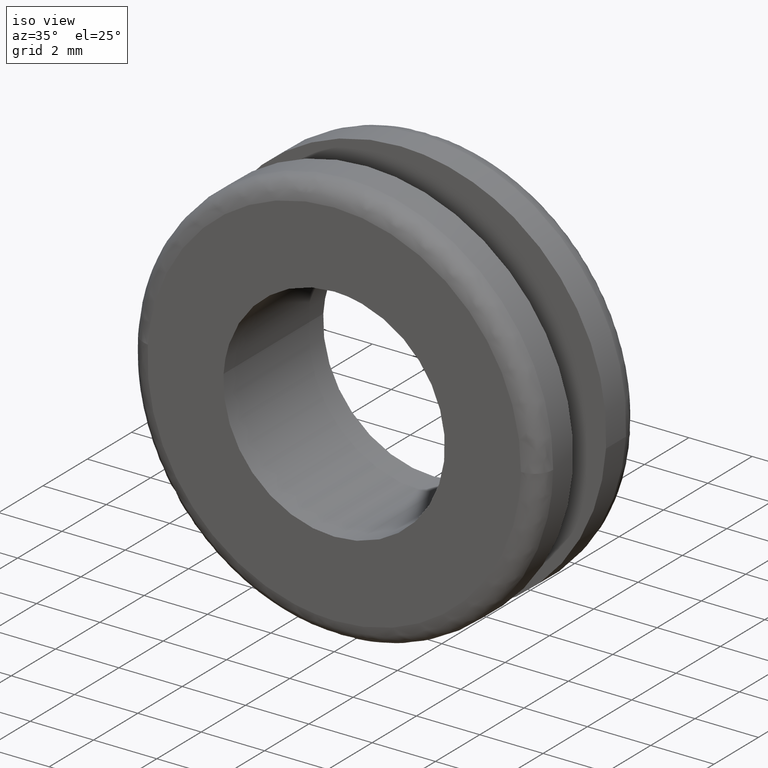
[diagram: clean part render]
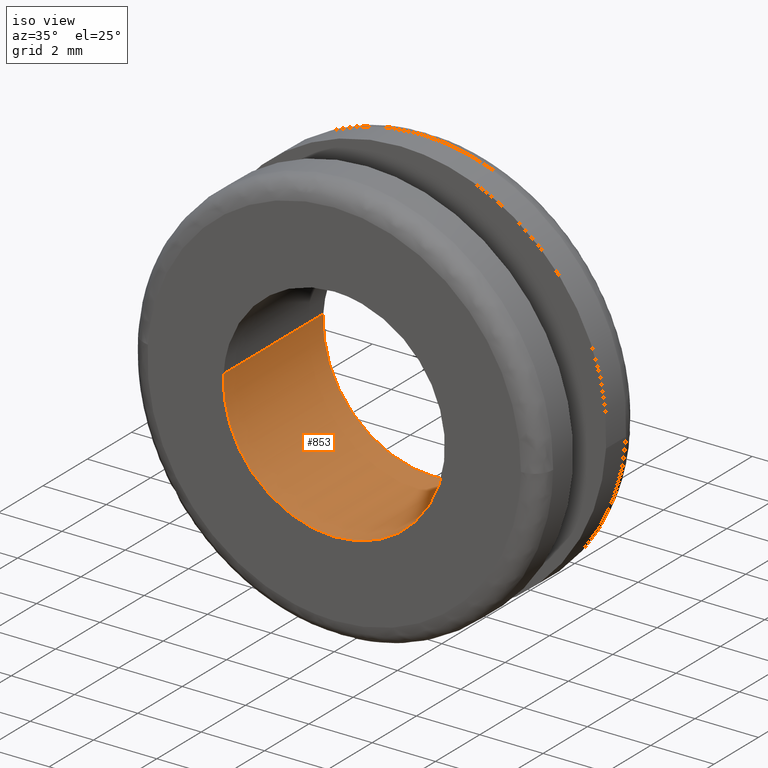
[diagram: same view with one face highlighted and labeled with its STEP entity id]
A machine part, iso view. The second image highlights one B-rep face of the part: STEP entity #853.
In plain terms, the highlighted face is a freeform B-spline surface patch.
Its self-contained STEP definition (entity closure, byte-faithful):
#686=CARTESIAN_POINT('',(3.475533966975179,4.500000000000004,-0.413114565676108));
#687=VERTEX_POINT('',#686);
#705=CARTESIAN_POINT('',(3.475533959448050,-5.628106E-016,-0.413114629002674));
#706=VERTEX_POINT('',#705);
#707=CARTESIAN_POINT('',(3.475533966975179,4.500000000000004,-0.413114565676108));
#708=CARTESIAN_POINT('',(3.475533959448050,-5.628106E-016,-0.413114629002674));
#709=QUASI_UNIFORM_CURVE('',1,(#707,#708),.UNSPECIFIED.,.F.,.U.);
#710=EDGE_CURVE('',#687,#706,#709,.T.);
#729=CARTESIAN_POINT('',(-3.493472121067672,-3.075814E-016,0.213664548520139));
#730=VERTEX_POINT('',#729);
#744=CARTESIAN_POINT('',(-3.493472125051436,4.500000000000011,0.213664483382879));
#745=VERTEX_POINT('',#744);
#746=CARTESIAN_POINT('',(-3.493472125051436,4.500000000000011,0.213664483382879));
#747=CARTESIAN_POINT('',(-3.493472121067672,-3.075814E-016,0.213664548520139));
#748=QUASI_UNIFORM_CURVE('',1,(#746,#747),.UNSPECIFIED.,.F.,.U.);
#749=EDGE_CURVE('',#745,#730,#748,.T.);
#767=CARTESIAN_POINT('',(-3.490527706906155,4.612499999999999,0.261805294656635));
#768=CARTESIAN_POINT('',(-3.491995537962111,4.612500000000003,0.237806469028484));
#769=CARTESIAN_POINT('',(-3.707141682848533,4.612500000000001,-3.279801906104533));
#770=CARTESIAN_POINT('',(-0.213669888371999,4.612500000000001,-3.493471794476533));
#771=CARTESIAN_POINT('',(3.085402217938253,4.612500000000001,-3.695251688563845));
#772=CARTESIAN_POINT('',(3.478454414398151,4.612500000000002,-0.388545150601873));
#773=CARTESIAN_POINT('',(3.481359787160425,4.612500000000002,-0.364102556985152));
#774=CARTESIAN_POINT('',(-3.490527706906155,-0.115312500000002,0.261805294656635));
#775=CARTESIAN_POINT('',(-3.491995537962111,-0.115312500000002,0.237806469028484));
#776=CARTESIAN_POINT('',(-3.707141682848533,-0.115312500000002,-3.279801906104533));
#777=CARTESIAN_POINT('',(-0.213669888371999,-0.115312500000002,-3.493471794476533));
#778=CARTESIAN_POINT('',(3.085402217938253,-0.115312500000002,-3.695251688563845));
#779=CARTESIAN_POINT('',(3.478454414398151,-0.115312500000002,-0.388545150601873));
#780=CARTESIAN_POINT('',(3.481359787160425,-0.115312500000002,-0.364102556985152));
#788=(BOUNDED_SURFACE()B_SPLINE_SURFACE(2,1,((#767,#774),(#768,#775),(#769,#776),(#770,#777),(#771,#778),(#772,#779),(#773,#780)),.UNSPECIFIED.,.F.,.F.,.U.)B_SPLINE_SURFACE_WITH_KNOTS((3,1,2,1,3),(2,2),(0.0,0.056823830741238,5.855813703964567,11.422843982258961,11.479680141923829),(0.0,4.727812500000004),.UNSPECIFIED.)GEOMETRIC_REPRESENTATION_ITEM()RATIONAL_B_SPLINE_SURFACE(((1.005740073721447,1.005740073721447),(1.002870036860723,1.002870036860723),(0.707106781186548,0.707106781186548),(1.0,1.0),(0.718822509939086,0.718822509939086),(0.980146807595297,0.980146807595297),(0.982787814395467,0.982787814395467)))REPRESENTATION_ITEM('')SURFACE());
#789=CARTESIAN_POINT('',(0.0,4.500000000000000,-3.500000000000000));
#790=VERTEX_POINT('',#789);
#791=CARTESIAN_POINT('',(0.0,4.500000000000000,-3.500000000000000));
#792=CARTESIAN_POINT('',(3.108615574694734,4.500000000000001,-3.500000000000000));
#793=CARTESIAN_POINT('',(3.475533966975180,4.500000000000004,-0.413114565676108));
#801=(BOUNDED_CURVE()B_SPLINE_CURVE(2,(#791,#792,#793),.UNSPECIFIED.,.F.,.U.)B_SPLINE_CURVE_WITH_KNOTS((3,3),(0.0,0.229562729078540),.UNSPECIFIED.)CURVE()GEOMETRIC_REPRESENTATION_ITEM()RATIONAL_B_SPLINE_CURVE((1.0,0.731050533442343,0.956027255102232))REPRESENTATION_ITEM(''));
#802=EDGE_CURVE('',#790,#687,#801,.T.);
#803=ORIENTED_EDGE('',*,*,#802,.F.);
#804=CARTESIAN_POINT('',(-3.493472125051436,4.500000000000011,0.213664483382879));
#805=CARTESIAN_POINT('',(-3.500000000000000,4.500000000000000,0.106931961473289));
#806=CARTESIAN_POINT('',(-3.500000000000000,4.500000000000000,-1.928755E-016));
#807=CARTESIAN_POINT('',(-3.500000000000000,4.500000000000000,-3.500000000000000));
#808=CARTESIAN_POINT('',(0.0,4.500000000000000,-3.500000000000000));
#816=(BOUNDED_CURVE()B_SPLINE_CURVE(2,(#804,#805,#806,#807,#808),.UNSPECIFIED.,.F.,.U.)B_SPLINE_CURVE_WITH_KNOTS((3,2,3),(0.739333229200960,0.750000000000000,1.0),.UNSPECIFIED.)CURVE()GEOMETRIC_REPRESENTATION_ITEM()RATIONAL_B_SPLINE_CURVE((0.976072613817806,0.987503100665295,1.0,0.707106781186547,1.0))REPRESENTATION_ITEM(''));
#817=EDGE_CURVE('',#745,#790,#816,.T.);
#818=ORIENTED_EDGE('',*,*,#817,.F.);
#819=ORIENTED_EDGE('',*,*,#749,.T.);
#820=CARTESIAN_POINT('',(0.0,-6.429183E-016,-3.500000000000000));
#821=VERTEX_POINT('',#820);
#822=CARTESIAN_POINT('',(-3.493472121067673,-3.075814E-016,0.213664548520139));
#823=CARTESIAN_POINT('',(-3.500000000000000,-6.429183E-016,0.106931994133230));
#824=CARTESIAN_POINT('',(-3.500000000000000,-6.429183E-016,-1.928755E-016));
#825=CARTESIAN_POINT('',(-3.500000000000000,-6.429183E-016,-3.500000000000000));
#826=CARTESIAN_POINT('',(0.0,-6.429183E-016,-3.500000000000000));
#834=(BOUNDED_CURVE()B_SPLINE_CURVE(2,(#822,#823,#824,#825,#826),.UNSPECIFIED.,.F.,.U.)B_SPLINE_CURVE_WITH_KNOTS((3,2,3),(0.739333225983751,0.750000000000000,1.0),.UNSPECIFIED.)CURVE()GEOMETRIC_REPRESENTATION_ITEM()RATIONAL_B_SPLINE_CURVE((0.976072606922698,0.987503096896100,1.0,0.707106781186547,1.0))REPRESENTATION_ITEM(''));
#835=EDGE_CURVE('',#730,#821,#834,.T.);
#836=ORIENTED_EDGE('',*,*,#835,.T.);
#837=CARTESIAN_POINT('',(0.0,-6.429183E-016,-3.500000000000000));
#838=CARTESIAN_POINT('',(3.108615517654953,-6.429183E-016,-3.500000000000001));
#839=CARTESIAN_POINT('',(3.475533959448050,-5.628106E-016,-0.413114629002674));
#847=(BOUNDED_CURVE()B_SPLINE_CURVE(2,(#837,#838,#839),.UNSPECIFIED.,.F.,.U.)B_SPLINE_CURVE_WITH_KNOTS((3,3),(0.0,0.229562725999186),.UNSPECIFIED.)CURVE()GEOMETRIC_REPRESENTATION_ITEM()RATIONAL_B_SPLINE_CURVE((1.0,0.731050537050031,0.956027249066558))REPRESENTATION_ITEM(''));
#848=EDGE_CURVE('',#821,#706,#847,.T.);
#849=ORIENTED_EDGE('',*,*,#848,.T.);
#850=ORIENTED_EDGE('',*,*,#710,.F.);
#851=EDGE_LOOP('',(#803,#818,#819,#836,#849,#850));
#852=FACE_OUTER_BOUND('',#851,.T.);
#853=ADVANCED_FACE('',(#852),#788,.F.);